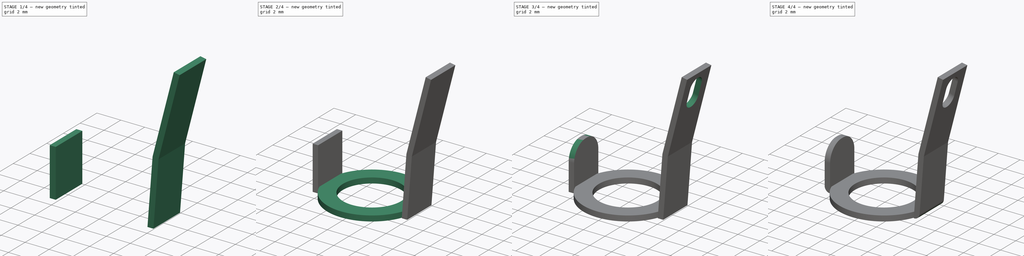
[diagram: build sequence overview — one tinted view per stage of 4, left to right]
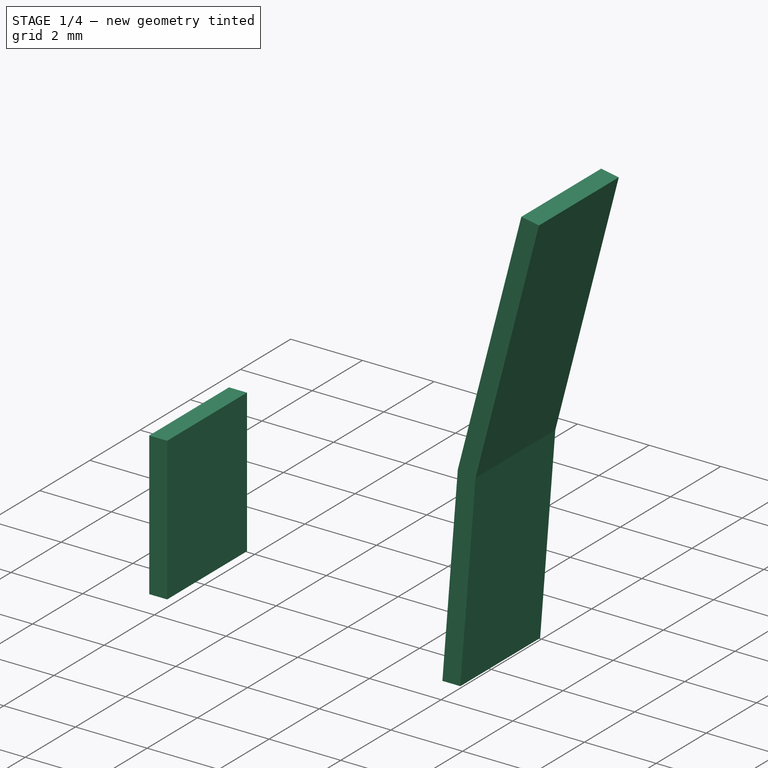
[diagram: stage 1 of 4 — iso view after this stage's code; geometry added in this stage tinted green]
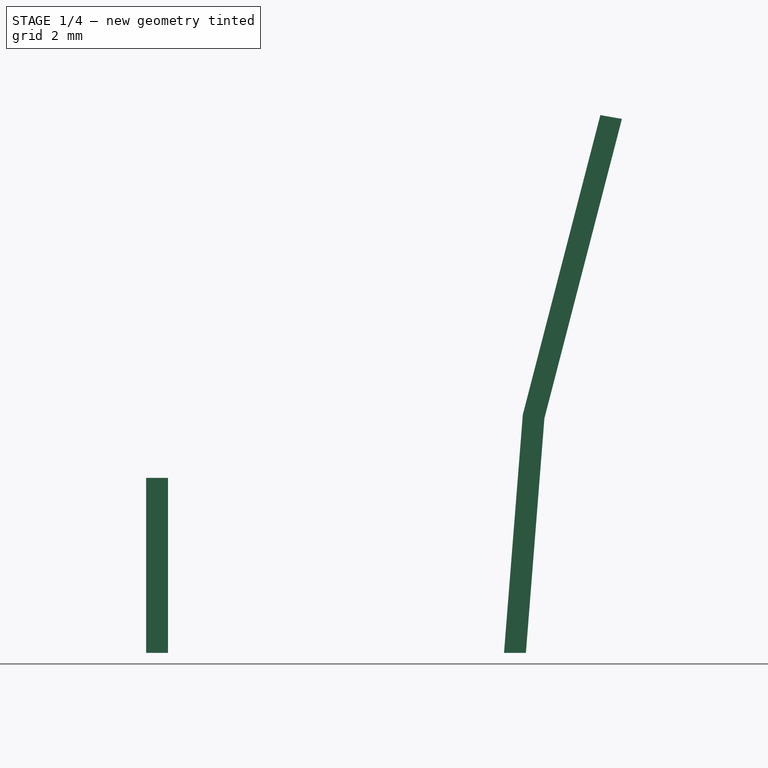
[diagram: stage 1 of 4 — front view after this stage's code; geometry added in this stage tinted green]
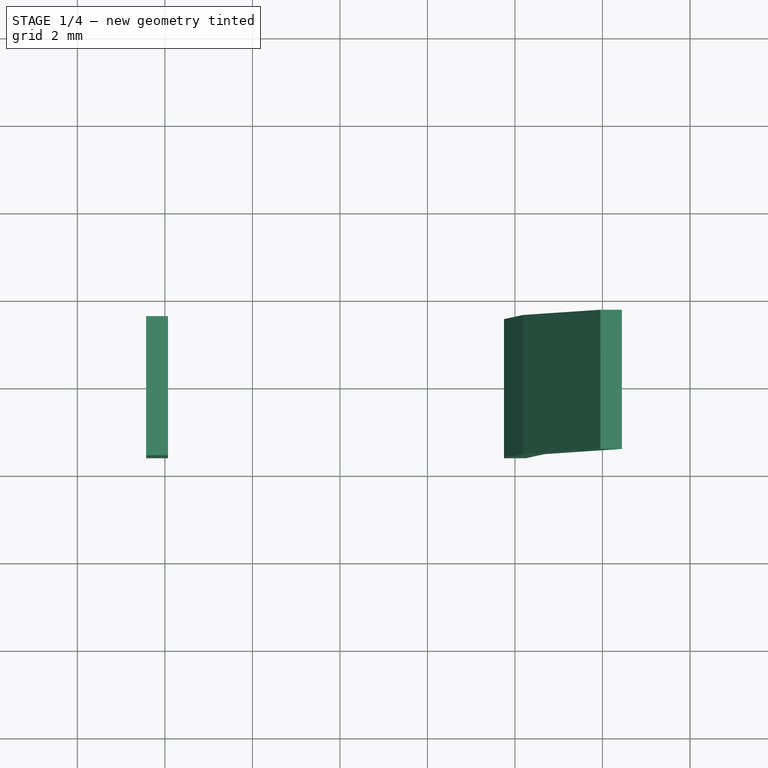
[diagram: stage 1 of 4 — top view after this stage's code; geometry added in this stage tinted green]
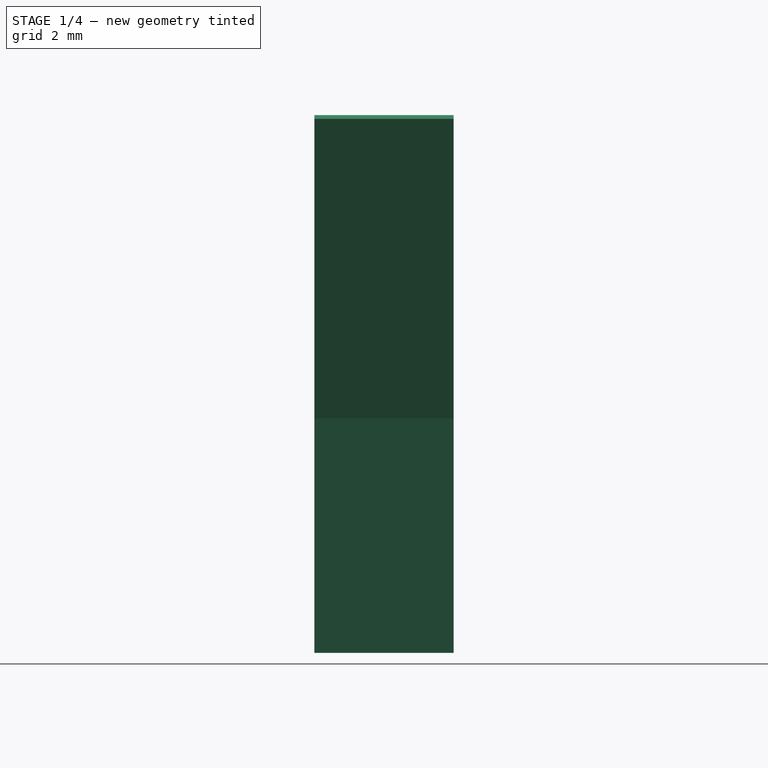
[diagram: stage 1 of 4 — right view after this stage's code; geometry added in this stage tinted green]
FCSTD DOCUMENT  (FreeCAD 0.15R4671 (Git))
Label: PF15_sprat_ring
License: All rights reserved
LicenseURL: http://en.wikipedia.org/wiki/All_rights_reserved
objects: Sketcher::SketchObject×4, Part::MultiFuse×2, Part::MultiCommon×2, PartDesign::Pad×1, Part::Sweep×1, Part::Box×1, PartDesign::Pocket×1, PartDesign::Fillet×1, Part::Fillet×1
note: 16 computed .brp shape members not serialized (recipe doc carries the construction recipe); baked Part::Feature solids carry a one-line shape summary decoded from their .brp

FEATURE [Sketcher::SketchObject] Sketch002
  Placement = pos=(0,0,0) rot=(1,0,0;1.5708rad)
  sketch-geometry (2):
    g0: LineSegment StartX=0 StartY=0 StartZ=0 EndX=0.426516 EndY=5.40319 EndZ=0
    g1: LineSegment StartX=0.426516 StartY=5.40319 StartZ=0 EndX=2.19831 EndY=12.2476 EndZ=0
  constraints (5):
    c: Coincident(g0,g-1)
    c: Coincident(g1,g0)
    c: Distance(g0) = 5.42
    c: Distance(g1) = 7.07
    c: Angle(g0,g1) = 2.96706
FEATURE [Sketcher::SketchObject] Sketch003
  sketch-geometry (4):
    g0: LineSegment StartX=-0.25 StartY=1.59 StartZ=0 EndX=0.25 EndY=1.59 EndZ=0
    g1: LineSegment StartX=0.25 StartY=1.59 StartZ=0 EndX=0.25 EndY=-1.59 EndZ=0
    g2: LineSegment StartX=0.25 StartY=-1.59 StartZ=0 EndX=-0.25 EndY=-1.59 EndZ=0
    g3: LineSegment StartX=-0.25 StartY=-1.59 StartZ=0 EndX=-0.25 EndY=1.59 EndZ=0
  constraints (12):
    c: Coincident(g0,g1)
    c: Coincident(g1,g2)
    c: Coincident(g2,g3)
    c: Coincident(g3,g0)
    c: Horizontal(g0)
    c: Horizontal(g2)
    c: Vertical(g1)
    c: Vertical(g3)
    c: Symmetric(g0,g0,g-2)
    c: DistanceX(g0) = 0.5
    c: Symmetric(g0,g1,g-1)
    c: DistanceY(g1) = -3.18
FEATURE [Part::Sweep] Sweep
  Frenet = true
  Sections = -> [Sketch003]
  Solid = true
  Spine = -> Sketch002
  Transition = 1
FEATURE [Part::Box] Box  label="Cube"
  Height = 4
  Length = 0.5
  Placement = pos=(-8.43,-1.59,0) rot=(0,0,1;0rad)
  Width = 3.18
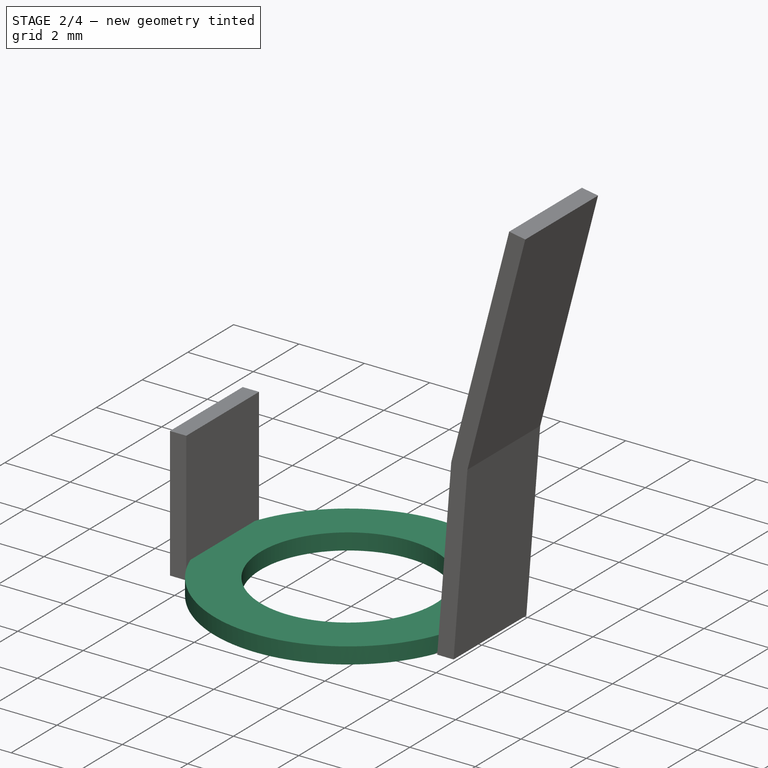
[diagram: stage 2 of 4 — iso view after this stage's code; geometry added in this stage tinted green]
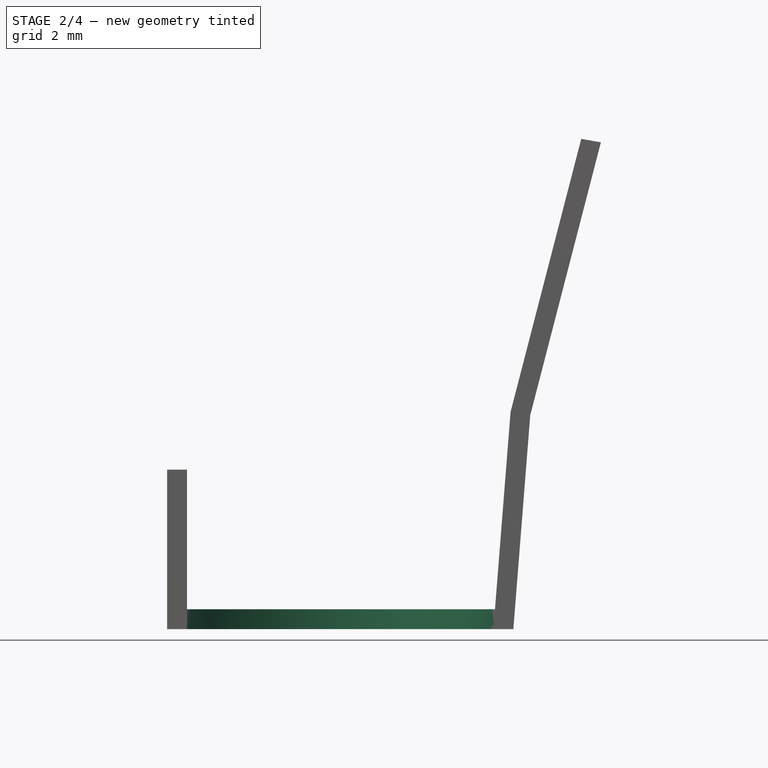
[diagram: stage 2 of 4 — front view after this stage's code; geometry added in this stage tinted green]
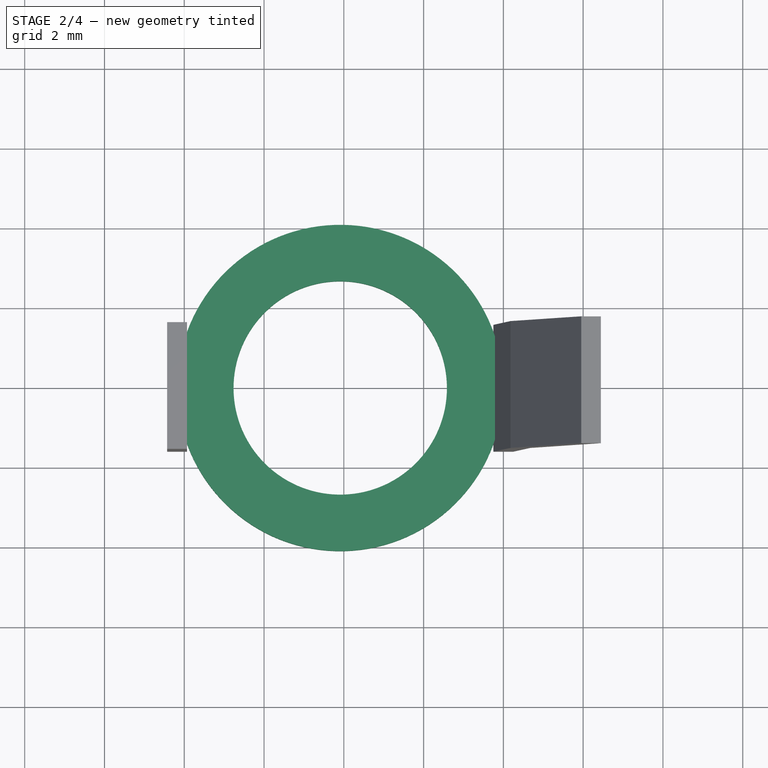
[diagram: stage 2 of 4 — top view after this stage's code; geometry added in this stage tinted green]
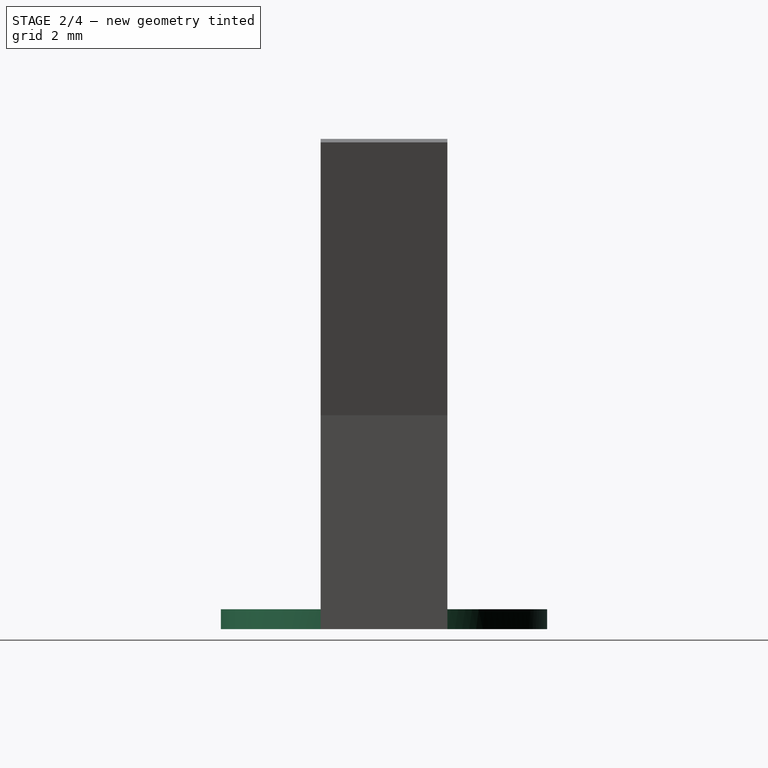
[diagram: stage 2 of 4 — right view after this stage's code; geometry added in this stage tinted green]
FEATURE [Sketcher::SketchObject] Sketch
  sketch-geometry (2):
    g0: Circle CenterX=-4.09 CenterY=0 CenterZ=0 NormalX=0 NormalY=0 NormalZ=1 Radius=4.09
    g1: Circle CenterX=-4.09 CenterY=0 CenterZ=0 NormalX=0 NormalY=0 NormalZ=1 Radius=2.675
  constraints (5):
    c: PointOnObject(g0,g-1)
    c: Radius(g0) = 4.09
    c: DistanceX(g-1,g0) = -4.09
    c: Coincident(g1,g0)
    c: Radius(g1) = 2.675
FEATURE [PartDesign::Pad] Pad
  Length = 0.5
  Length2 = 100
  Sketch = -> Sketch
  Type = 0
FEATURE [Part::MultiFuse] Fusion
  Shapes = -> [Sweep,Pad]
FEATURE [Part::MultiFuse] Fusion001
  Shapes = -> [Box,Fusion]
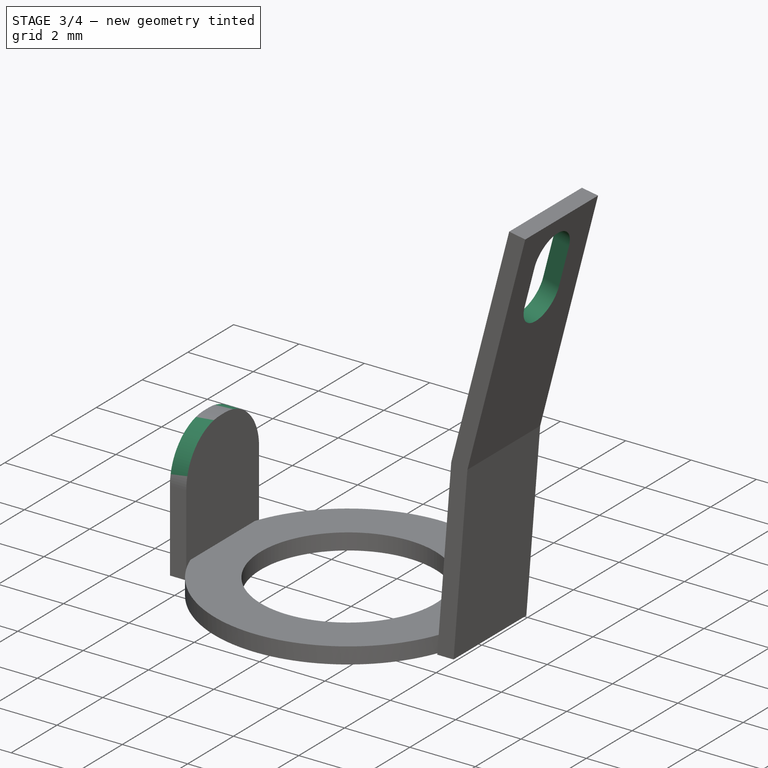
[diagram: stage 3 of 4 — iso view after this stage's code; geometry added in this stage tinted green]
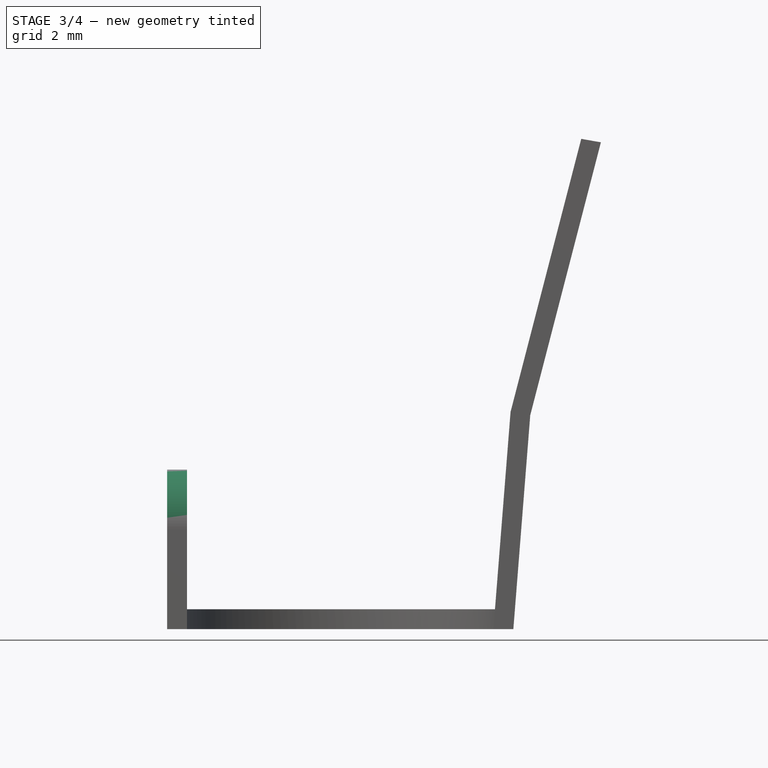
[diagram: stage 3 of 4 — front view after this stage's code; geometry added in this stage tinted green]
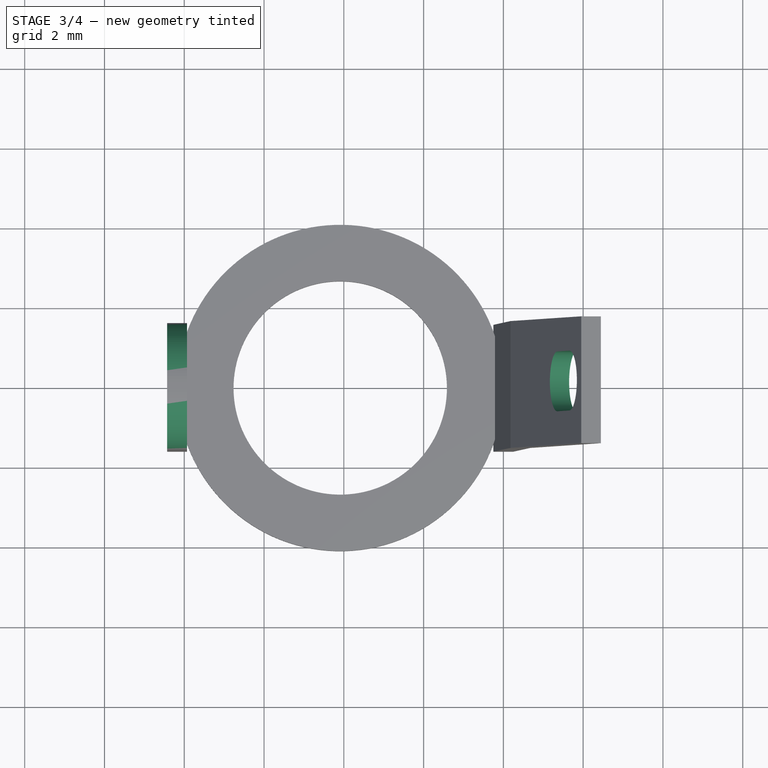
[diagram: stage 3 of 4 — top view after this stage's code; geometry added in this stage tinted green]
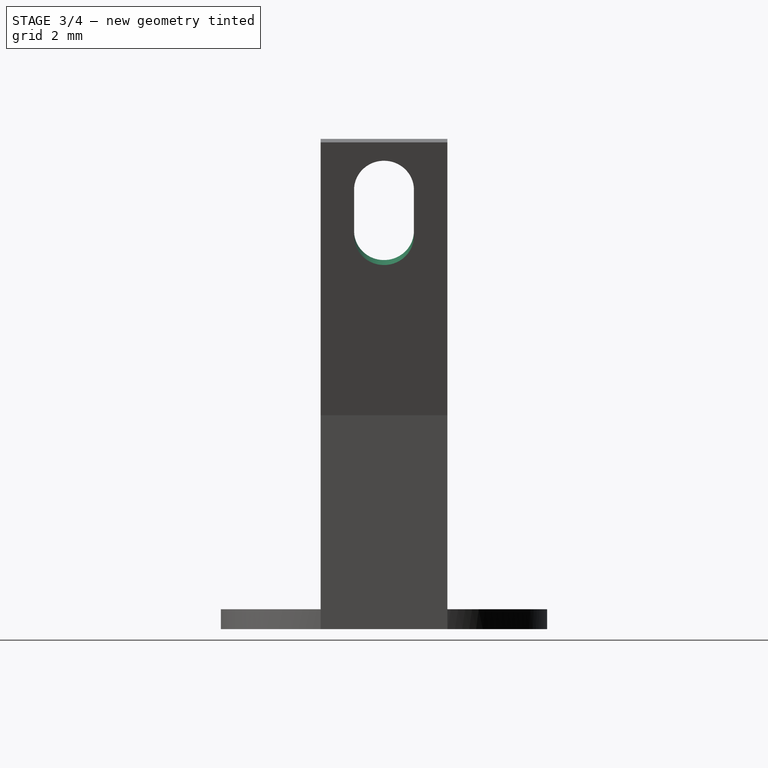
[diagram: stage 3 of 4 — right view after this stage's code; geometry added in this stage tinted green]
FEATURE [Sketcher::SketchObject] Sketch004
  Placement = pos=(-1.15241,0,0.298322) rot=(0.522079,-0.522079,-0.674438;1.95487rad)
  Support = -> Fusion001 [Face14]
  sketch-geometry (4):
    g0: ArcOfCircle CenterX=0 CenterY=11.2 CenterZ=0 NormalX=0 NormalY=0 NormalZ=1 Radius=0.75 StartAngle=0 EndAngle=3.14159
    g1: ArcOfCircle CenterX=0 CenterY=10 CenterZ=0 NormalX=0 NormalY=0 NormalZ=1 Radius=0.75 StartAngle=3.14159 EndAngle=6.28319
    g2: LineSegment StartX=-0.75 StartY=11.2 StartZ=0 EndX=-0.75 EndY=10 EndZ=0
    g3: LineSegment StartX=0.75 StartY=11.2 StartZ=0 EndX=0.75 EndY=10 EndZ=0
  constraints (10):
    c: Tangent(g0,g3) = 1.5708
    c: Tangent(g0,g2) = -1.5708
    c: Tangent(g2,g1) = -1.5708
    c: Tangent(g3,g1) = 1.5708
    c: Vertical(g2)
    c: Equal(g0,g1)
    c: PointOnObject(g0,g-2)
    c: DistanceX(g0,g0) = 1.5
    c: DistanceY(g3) = -1.2
    c: DistanceY(g-1,g0) = 11.2
FEATURE [PartDesign::Pocket] Pocket
  Length = 5
  Sketch = -> Sketch004
  Type = 0
FEATURE [Part::MultiCommon] Common
  Shapes = -> [Pocket,Fusion001]
FEATURE [PartDesign::Fillet] Fillet
  Base = -> Common [Edge19,Edge7]
  Radius = 1.5
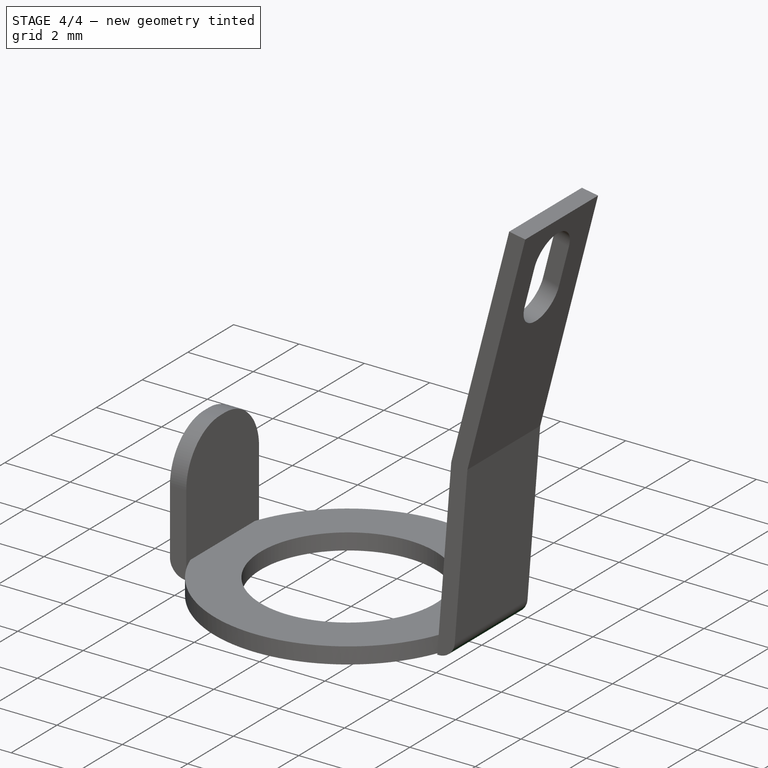
[diagram: stage 4 of 4 — iso view after this stage's code; geometry added in this stage tinted green]
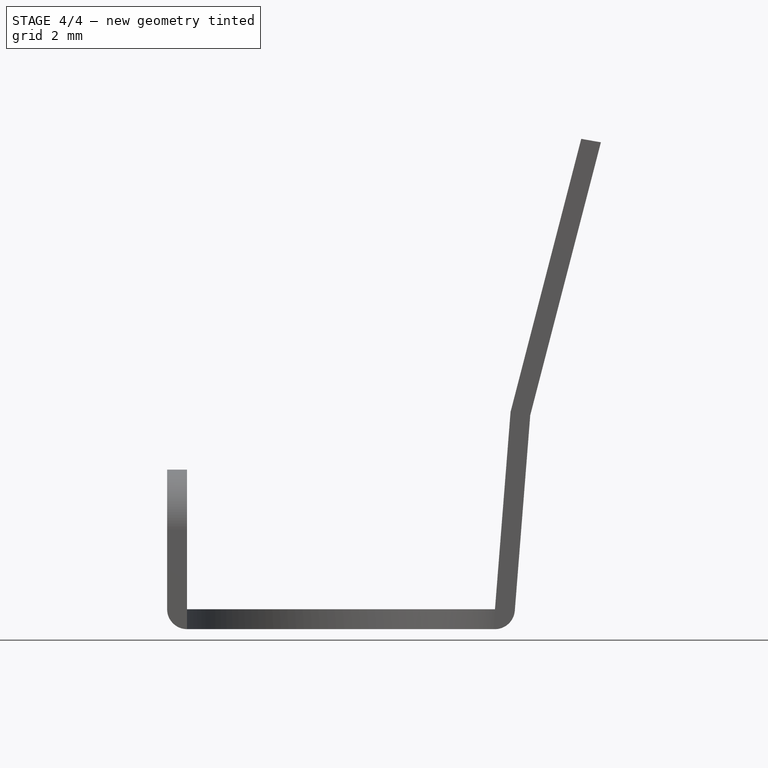
[diagram: stage 4 of 4 — front view after this stage's code; geometry added in this stage tinted green]
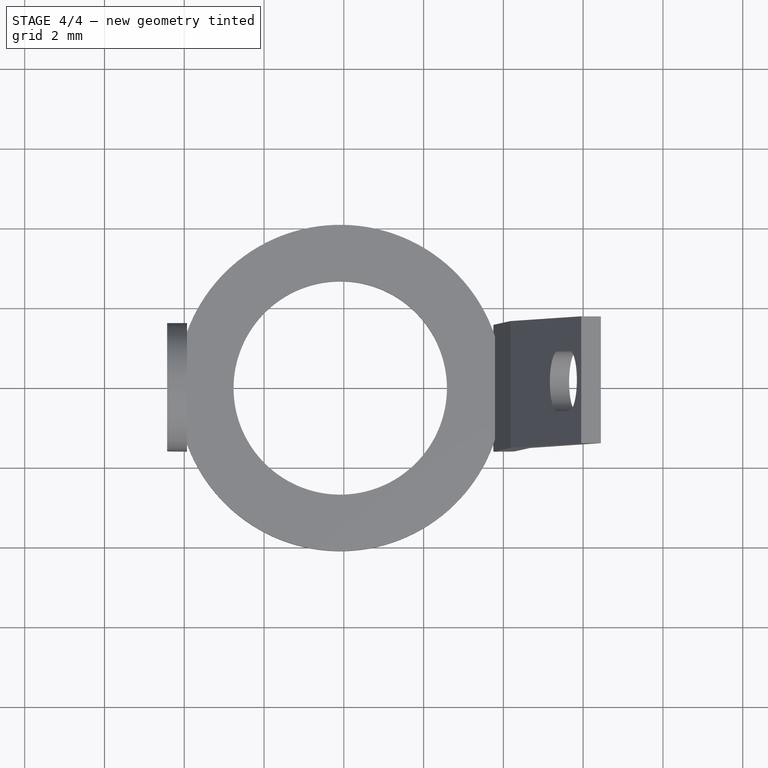
[diagram: stage 4 of 4 — top view after this stage's code; geometry added in this stage tinted green]
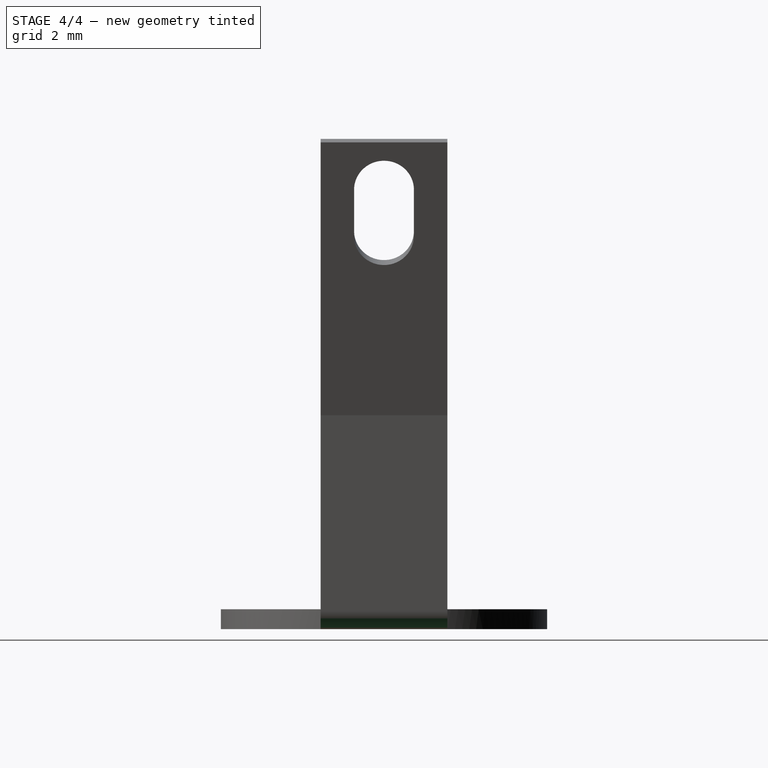
[diagram: stage 4 of 4 — right view after this stage's code; geometry added in this stage tinted green]
FEATURE [Part::MultiCommon] Common001
  Shapes = -> [Fillet,Common]
FEATURE [Part::Fillet] Fillet001
  Base = -> Common001
  Edges = 2 edges r=0.5: [Edge6,Edge25]
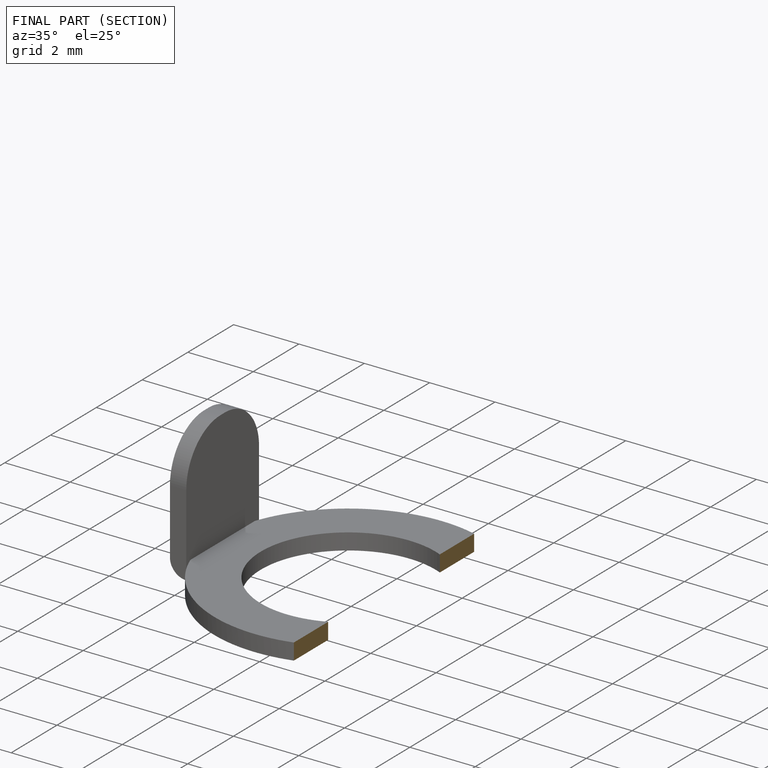
[diagram: finished part — half-section view (interior)]
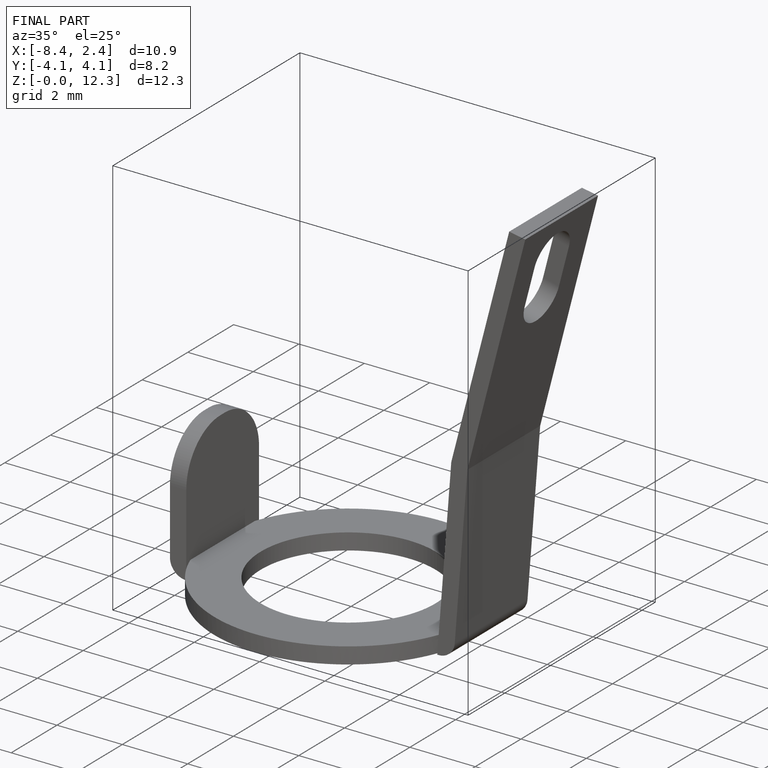
[diagram: finished part — iso view with bounding-box wireframe]
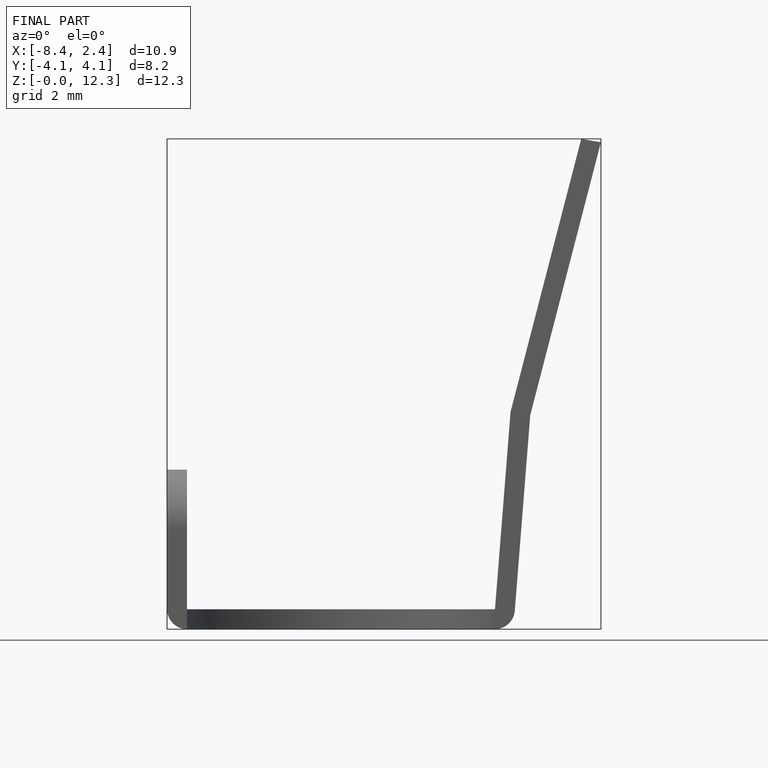
[diagram: finished part — front view with bounding-box wireframe]
